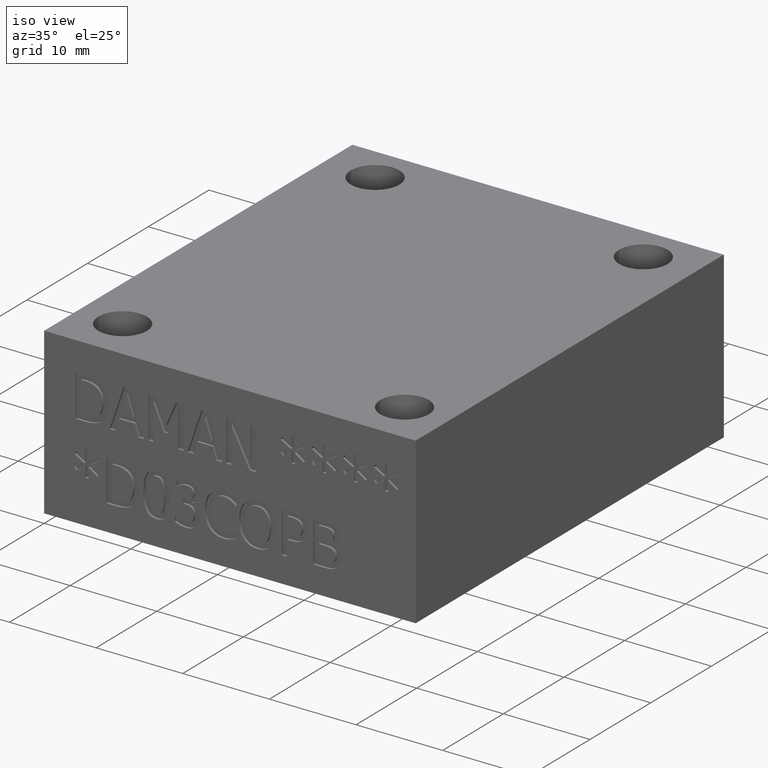
[diagram: clean part render]
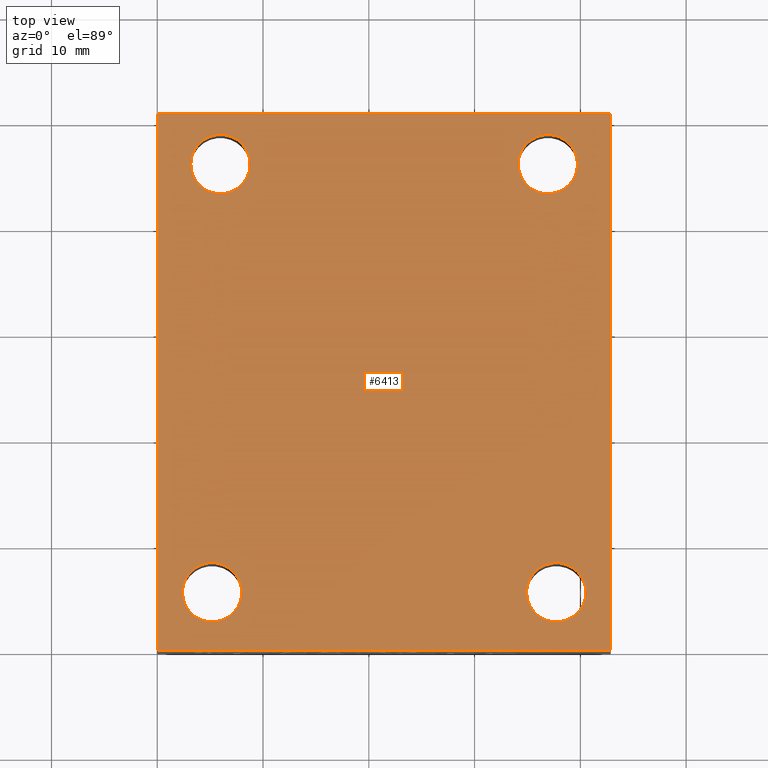
[diagram: tour spotlight — one face highlighted and labeled with its STEP entity id]
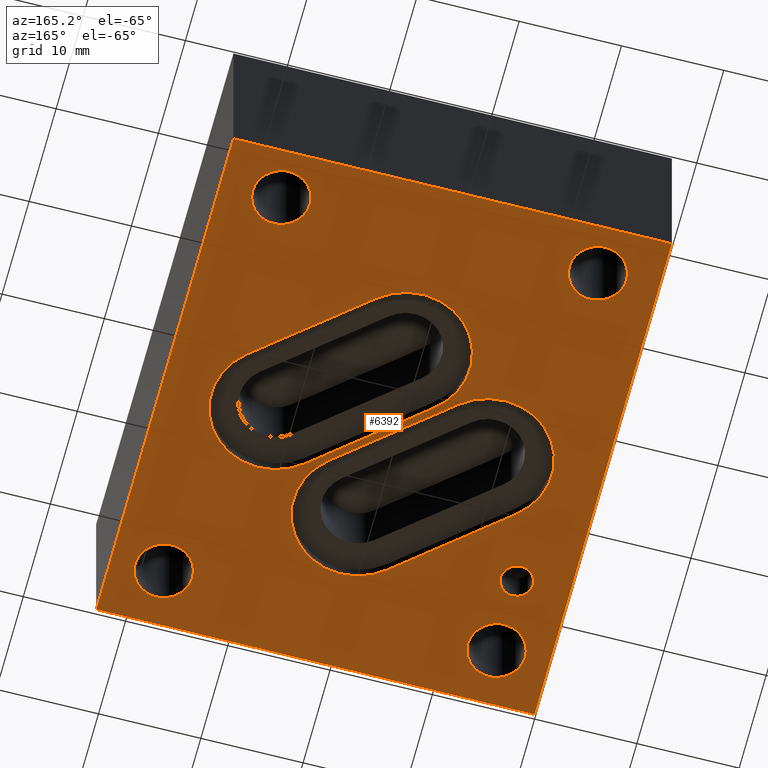
[diagram: tour spotlight — one face highlighted and labeled with its STEP entity id]
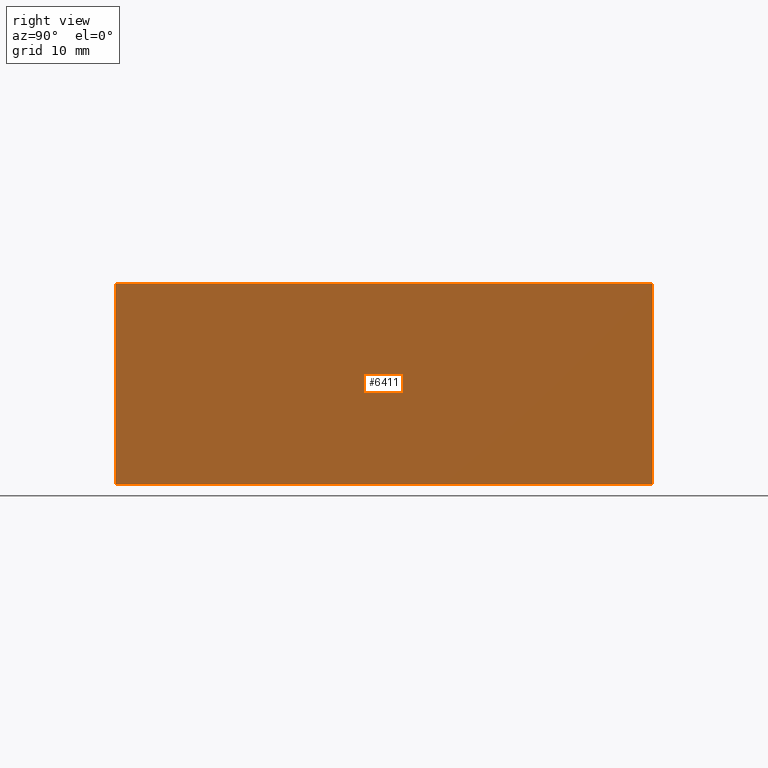
[diagram: tour spotlight — one face highlighted and labeled with its STEP entity id]
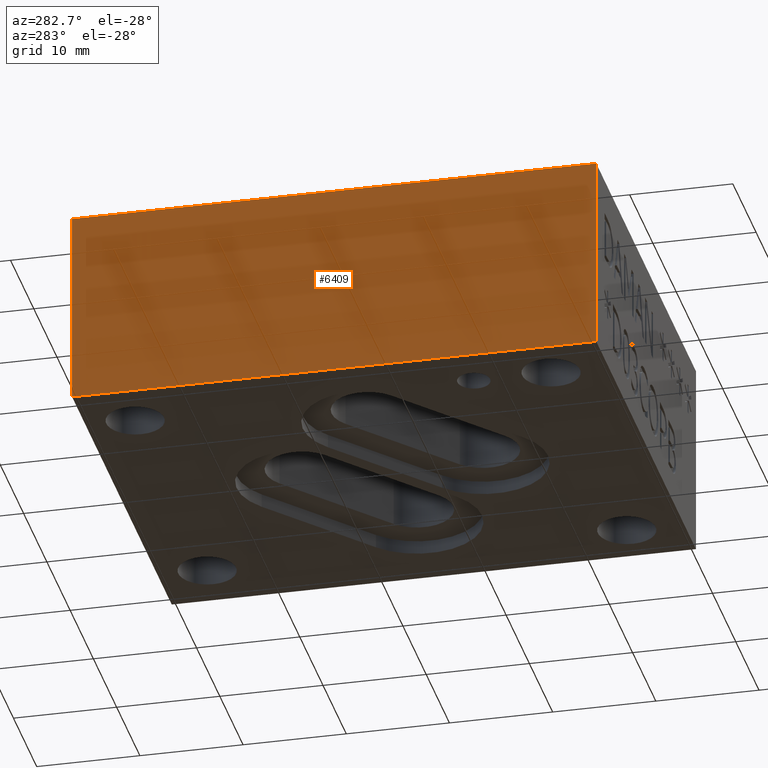
[diagram: tour spotlight — one face highlighted and labeled with its STEP entity id]
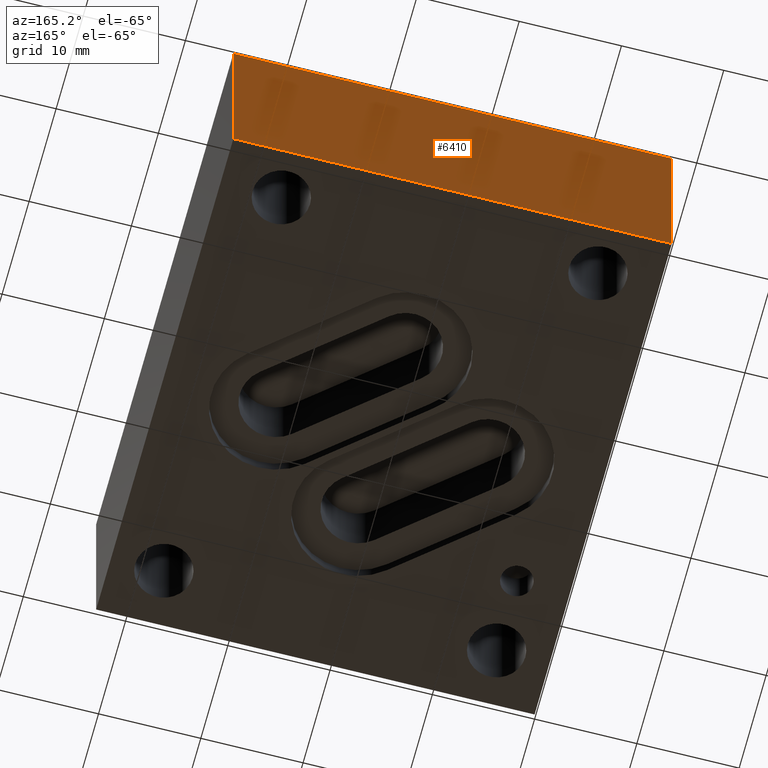
[diagram: tour spotlight — one face highlighted and labeled with its STEP entity id]
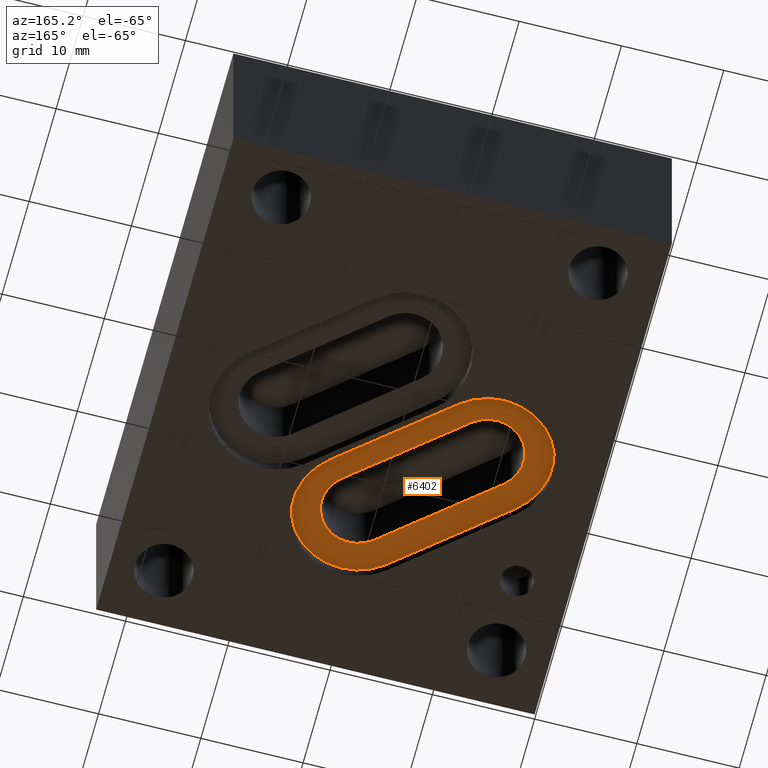
[diagram: tour spotlight — one face highlighted and labeled with its STEP entity id]
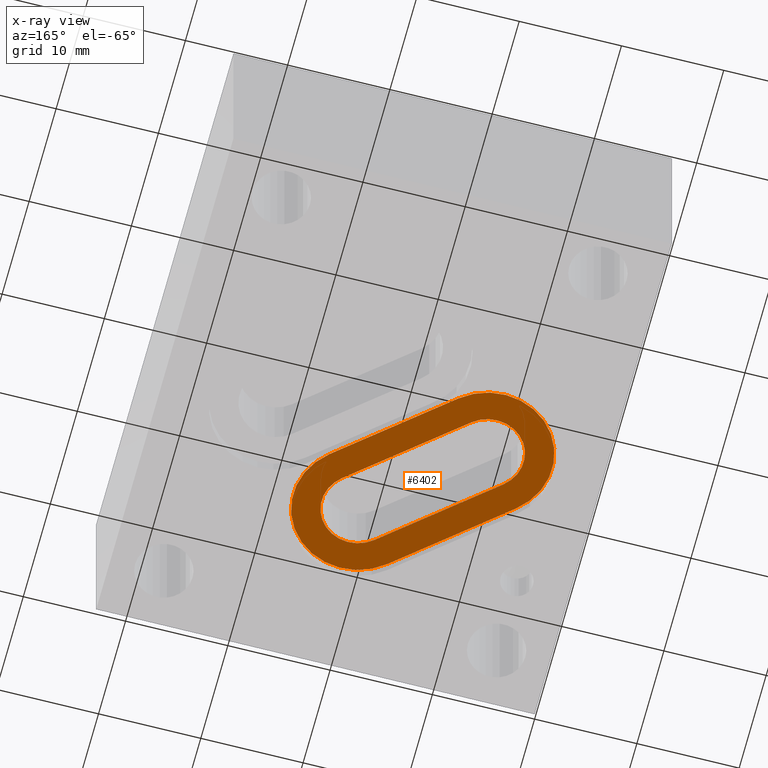
[diagram: x-ray of the same camera — body ghosted, this tour face saturated]
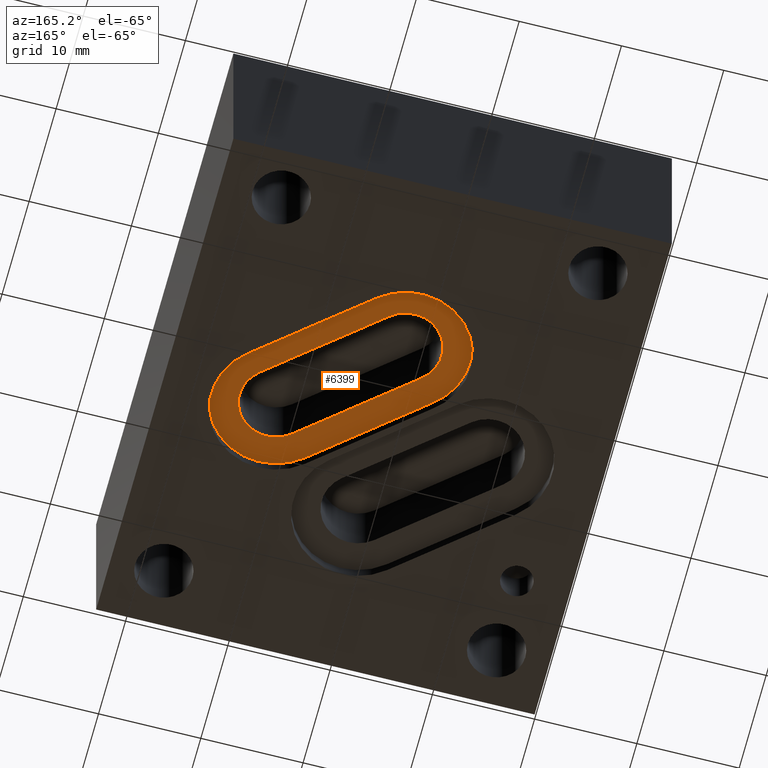
[diagram: tour spotlight — one face highlighted and labeled with its STEP entity id]
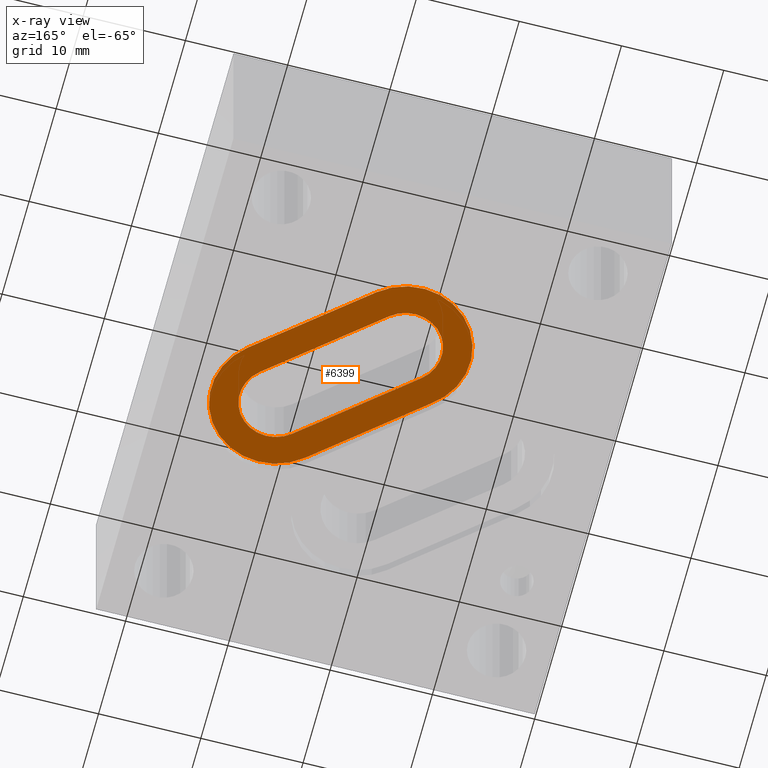
[diagram: x-ray of the same camera — body ghosted, this tour face saturated]
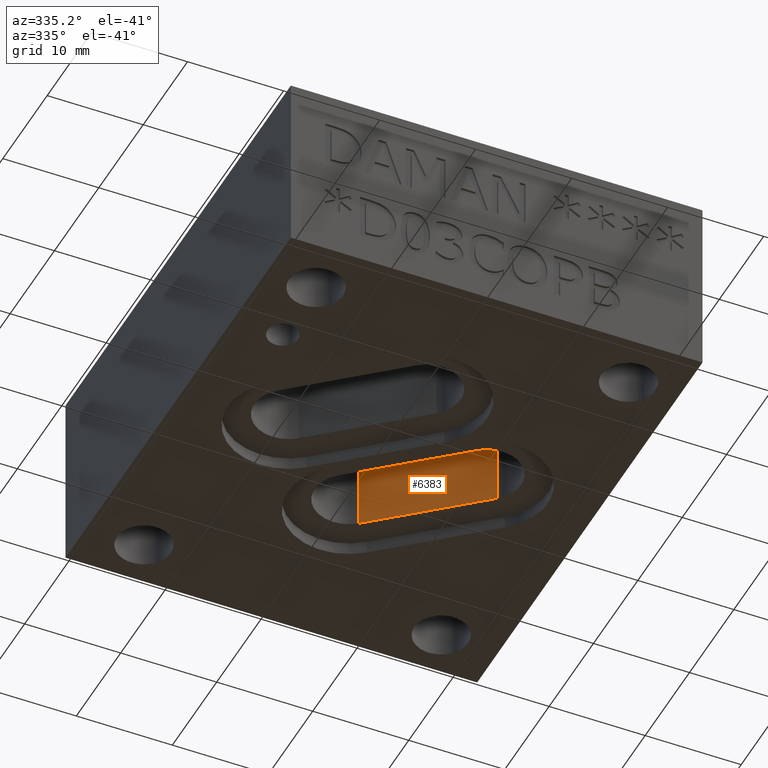
[diagram: tour spotlight — one face highlighted and labeled with its STEP entity id]
A machine part: a face-by-face anatomy tour. The part has 338 B-rep faces; the first image is the clean iso view, then the 8 largest visible faces are spotlighted one at a time (largest first), each with its STEP entity span.

Face 1 — top view, entity #6413. In plain terms, the highlighted planar face has unit normal (0, 0, 1).
Definition (entity closure, byte-faithful):
#48=CIRCLE('',#6697,0.1105);
#49=CIRCLE('',#6699,0.1105);
#50=CIRCLE('',#6701,0.1105);
#51=CIRCLE('',#6703,0.1105);
#201=FACE_BOUND('',#916,.T.);
#202=FACE_BOUND('',#917,.T.);
#203=FACE_BOUND('',#918,.T.);
#204=FACE_BOUND('',#919,.T.);
#542=FACE_OUTER_BOUND('',#915,.T.);
#915=EDGE_LOOP('',(#5845,#5846,#5847,#5848));
#916=EDGE_LOOP('',(#5849));
#917=EDGE_LOOP('',(#5850));
#918=EDGE_LOOP('',(#5851));
#919=EDGE_LOOP('',(#5852));
#1550=LINE('',#11216,#2234);
#1599=LINE('',#11399,#2283);
#1601=LINE('',#11403,#2285);
#1603=LINE('',#11406,#2287);
#2234=VECTOR('',#7731,1.688);
#2283=VECTOR('',#7932,2.);
#2285=VECTOR('',#7936,1.688);
#2287=VECTOR('',#7940,2.);
#3038=VERTEX_POINT('',#11214);
#3039=VERTEX_POINT('',#11215);
#3093=VERTEX_POINT('',#11382);
#3094=VERTEX_POINT('',#11386);
#3095=VERTEX_POINT('',#11390);
#3096=VERTEX_POINT('',#11394);
#3097=VERTEX_POINT('',#11398);
#3098=VERTEX_POINT('',#11402);
#3927=EDGE_CURVE('',#3038,#3039,#1550,.T.);
#4004=EDGE_CURVE('',#3093,#3093,#48,.T.);
#4006=EDGE_CURVE('',#3094,#3094,#49,.T.);
#4008=EDGE_CURVE('',#3095,#3095,#50,.T.);
#4010=EDGE_CURVE('',#3096,#3096,#51,.T.);
#4012=EDGE_CURVE('',#3039,#3097,#1599,.T.);
#4014=EDGE_CURVE('',#3097,#3098,#1601,.T.);
#4016=EDGE_CURVE('',#3098,#3038,#1603,.T.);
#5845=ORIENTED_EDGE('',*,*,#4012,.F.);
#5846=ORIENTED_EDGE('',*,*,#3927,.F.);
#5847=ORIENTED_EDGE('',*,*,#4016,.F.);
#5848=ORIENTED_EDGE('',*,*,#4014,.F.);
#5849=ORIENTED_EDGE('',*,*,#4004,.T.);
#5850=ORIENTED_EDGE('',*,*,#4006,.T.);
#5851=ORIENTED_EDGE('',*,*,#4008,.T.);
#5852=ORIENTED_EDGE('',*,*,#4010,.T.);
#6075=PLANE('',#6708);
#6413=ADVANCED_FACE('',(#542,#201,#202,#203,#204),#6075,.T.);
#6697=AXIS2_PLACEMENT_3D('',#11383,#7912,#7913);
#6699=AXIS2_PLACEMENT_3D('',#11387,#7917,#7918);
#6701=AXIS2_PLACEMENT_3D('',#11391,#7922,#7923);
#6703=AXIS2_PLACEMENT_3D('',#11395,#7927,#7928);
#6708=AXIS2_PLACEMENT_3D('',#11408,#7943,#7944);
#7731=DIRECTION('',(-1.,0.,0.));
#7912=DIRECTION('center_axis',(0.,0.,-1.));
#7913=DIRECTION('ref_axis',(1.,0.,0.));
#7917=DIRECTION('center_axis',(0.,0.,-1.));
#7918=DIRECTION('ref_axis',(1.,0.,0.));
#7922=DIRECTION('center_axis',(0.,0.,-1.));
#7923=DIRECTION('ref_axis',(1.,0.,0.));
#7927=DIRECTION('center_axis',(0.,0.,-1.));
#7928=DIRECTION('ref_axis',(1.,0.,0.));
#7932=DIRECTION('',(0.,1.,0.));
#7936=DIRECTION('',(1.,0.,0.));
#7940=DIRECTION('',(0.,-1.,0.));
#7943=DIRECTION('center_axis',(0.,0.,1.));
#7944=DIRECTION('ref_axis',(1.,0.,0.));
#11214=CARTESIAN_POINT('',(1.688,0.,0.75));
#11215=CARTESIAN_POINT('',(0.,0.,0.75));
#11216=CARTESIAN_POINT('',(1.688,0.,0.75));
#11382=CARTESIAN_POINT('',(0.0935,0.218,0.75));
#11383=CARTESIAN_POINT('Origin',(0.204,0.218,0.75));
#11386=CARTESIAN_POINT('',(1.3745,0.218,0.75));
#11387=CARTESIAN_POINT('Origin',(1.485,0.218,0.75));
#11390=CARTESIAN_POINT('',(1.3435,1.812,0.75));
#11391=CARTESIAN_POINT('Origin',(1.454,1.812,0.75));
#11394=CARTESIAN_POINT('',(0.1245,1.812,0.75));
#11395=CARTESIAN_POINT('Origin',(0.235,1.812,0.75));
#11398=CARTESIAN_POINT('',(0.,2.,0.75));
#11399=CARTESIAN_POINT('',(0.,0.,0.75));
#11402=CARTESIAN_POINT('',(1.688,2.,0.75));
#11403=CARTESIAN_POINT('',(0.,2.,0.75));
#11406=CARTESIAN_POINT('',(1.688,2.,0.75));
#11408=CARTESIAN_POINT('Origin',(0.844,1.,0.75));

Face 2 — auxiliary view, entity #6392. In plain terms, the highlighted planar face has unit normal (0, 0, 1).
Definition (entity closure, byte-faithful):
#24=CIRCLE('',#6658,0.25);
#27=CIRCLE('',#6662,0.25);
#28=CIRCLE('',#6664,0.25);
#29=CIRCLE('',#6665,0.25);
#30=CIRCLE('',#6666,0.0625);
#31=CIRCLE('',#6667,0.0625);
#32=CIRCLE('',#6668,0.1105);
#33=CIRCLE('',#6669,0.1105);
#34=CIRCLE('',#6670,0.1105);
#35=CIRCLE('',#6671,0.1105);
#36=CIRCLE('',#6672,0.1105);
#37=CIRCLE('',#6673,0.1105);
#38=CIRCLE('',#6674,0.1105);
#39=CIRCLE('',#6675,0.1105);
#192=FACE_BOUND('',#886,.T.);
#193=FACE_BOUND('',#887,.T.);
#194=FACE_BOUND('',#888,.T.);
#195=FACE_BOUND('',#889,.T.);
#196=FACE_BOUND('',#890,.T.);
#197=FACE_BOUND('',#891,.T.);
#198=FACE_BOUND('',#892,.T.);
#521=FACE_OUTER_BOUND('',#885,.T.);
#885=EDGE_LOOP('',(#5730,#5731,#5732,#5733));
#886=EDGE_LOOP('',(#5734,#5735,#5736,#5737));
#887=EDGE_LOOP('',(#5738,#5739,#5740,#5741));
#888=EDGE_LOOP('',(#5742,#5743));
#889=EDGE_LOOP('',(#5744,#5745));
#890=EDGE_LOOP('',(#5746,#5747));
#891=EDGE_LOOP('',(#5748,#5749));
#892=EDGE_LOOP('',(#5750,#5751));
#1552=LINE('',#11220,#2236);
#1576=LINE('',#11293,#2260);
#1580=LINE('',#11302,#2264);
#1585=LINE('',#11312,#2269);
#1588=LINE('',#11320,#2272);
#1590=LINE('',#11330,#2274);
#1591=LINE('',#11332,#2275);
#1592=LINE('',#11333,#2276);
#2236=VECTOR('',#7733,1.688);
#2260=VECTOR('',#7807,0.532139079564732);
#2264=VECTOR('',#7813,0.532139079564732);
#2269=VECTOR('',#7820,0.514935238714833);
#2272=VECTOR('',#7825,0.532902430093915);
#2274=VECTOR('',#7841,2.);
#2275=VECTOR('',#7842,1.688);
#2276=VECTOR('',#7843,2.);
#3040=VERTEX_POINT('',#11217);
#3041=VERTEX_POINT('',#11219);
#3064=VERTEX_POINT('',#11290);
#3065=VERTEX_POINT('',#11292);
#3068=VERTEX_POINT('',#11299);
#3069=VERTEX_POINT('',#11301);
#3071=VERTEX_POINT('',#11306);
#3073=VERTEX_POINT('',#11310);
#3076=VERTEX_POINT('',#11317);
#3077=VERTEX_POINT('',#11319);
#3078=VERTEX_POINT('',#11329);
#3079=VERTEX_POINT('',#11331);
#3080=VERTEX_POINT('',#11336);
#3081=VERTEX_POINT('',#11337);
#3082=VERTEX_POINT('',#11340);
#3083=VERTEX_POINT('',#11341);
#3084=VERTEX_POINT('',#11344);
#3085=VERTEX_POINT('',#11345);
#3086=VERTEX_POINT('',#11348);
#3087=VERTEX_POINT('',#11349);
#3088=VERTEX_POINT('',#11352);
#3089=VERTEX_POINT('',#11353);
#3929=EDGE_CURVE('',#3040,#3041,#1552,.T.);
#3961=EDGE_CURVE('',#3065,#3064,#1576,.T.);
#3965=EDGE_CURVE('',#3069,#3068,#1580,.T.);
#3970=EDGE_CURVE('',#3071,#3073,#1585,.T.);
#3973=EDGE_CURVE('',#3077,#3076,#1588,.T.);
#3975=EDGE_CURVE('',#3064,#3069,#24,.T.);
#3978=EDGE_CURVE('',#3068,#3065,#27,.T.);
#3979=EDGE_CURVE('',#3078,#3040,#1590,.T.);
#3980=EDGE_CURVE('',#3079,#3078,#1591,.T.);
#3981=EDGE_CURVE('',#3041,#3079,#1592,.T.);
#3982=EDGE_CURVE('',#3076,#3071,#28,.T.);
#3983=EDGE_CURVE('',#3073,#3077,#29,.T.);
#3984=EDGE_CURVE('',#3080,#3081,#30,.T.);
#3985=EDGE_CURVE('',#3081,#3080,#31,.T.);
#3986=EDGE_CURVE('',#3082,#3083,#32,.T.);
#3987=EDGE_CURVE('',#3083,#3082,#33,.T.);
#3988=EDGE_CURVE('',#3084,#3085,#34,.T.);
#3989=EDGE_CURVE('',#3085,#3084,#35,.T.);
#3990=EDGE_CURVE('',#3086,#3087,#36,.T.);
#3991=EDGE_CURVE('',#3087,#3086,#37,.T.);
#3992=EDGE_CURVE('',#3088,#3089,#38,.T.);
#3993=EDGE_CURVE('',#3089,#3088,#39,.T.);
#5730=ORIENTED_EDGE('',*,*,#3929,.F.);
#5731=ORIENTED_EDGE('',*,*,#3979,.F.);
#5732=ORIENTED_EDGE('',*,*,#3980,.F.);
#5733=ORIENTED_EDGE('',*,*,#3981,.F.);
#5734=ORIENTED_EDGE('',*,*,#3965,.T.);
#5735=ORIENTED_EDGE('',*,*,#3978,.T.);
#5736=ORIENTED_EDGE('',*,*,#3961,.T.);
#5737=ORIENTED_EDGE('',*,*,#3975,.T.);
#5738=ORIENTED_EDGE('',*,*,#3973,.T.);
#5739=ORIENTED_EDGE('',*,*,#3982,.T.);
#5740=ORIENTED_EDGE('',*,*,#3970,.T.);
#5741=ORIENTED_EDGE('',*,*,#3983,.T.);
#5742=ORIENTED_EDGE('',*,*,#3984,.T.);
#5743=ORIENTED_EDGE('',*,*,#3985,.T.);
#5744=ORIENTED_EDGE('',*,*,#3986,.T.);
#5745=ORIENTED_EDGE('',*,*,#3987,.T.);
#5746=ORIENTED_EDGE('',*,*,#3988,.T.);
#5747=ORIENTED_EDGE('',*,*,#3989,.T.);
#5748=ORIENTED_EDGE('',*,*,#3990,.T.);
#5749=ORIENTED_EDGE('',*,*,#3991,.T.);
#5750=ORIENTED_EDGE('',*,*,#3992,.T.);
#5751=ORIENTED_EDGE('',*,*,#3993,.T.);
#6064=PLANE('',#6663);
#6392=ADVANCED_FACE('',(#521,#192,#193,#194,#195,#196,#197,#198),#6064,
 .F.);
#6658=AXIS2_PLACEMENT_3D('',#11323,#7829,#7830);
#6662=AXIS2_PLACEMENT_3D('',#11327,#7837,#7838);
#6663=AXIS2_PLACEMENT_3D('',#11328,#7839,#7840);
#6664=AXIS2_PLACEMENT_3D('',#11334,#7844,#7845);
#6665=AXIS2_PLACEMENT_3D('',#11335,#7846,#7847);
#6666=AXIS2_PLACEMENT_3D('',#11338,#7848,#7849);
#6667=AXIS2_PLACEMENT_3D('',#11339,#7850,#7851);
#6668=AXIS2_PLACEMENT_3D('',#11342,#7852,#7853);
#6669=AXIS2_PLACEMENT_3D('',#11343,#7854,#7855);
#6670=AXIS2_PLACEMENT_3D('',#11346,#7856,#7857);
#6671=AXIS2_PLACEMENT_3D('',#11347,#7858,#7859);
#6672=AXIS2_PLACEMENT_3D('',#11350,#7860,#7861);
#6673=AXIS2_PLACEMENT_3D('',#11351,#7862,#7863);
#6674=AXIS2_PLACEMENT_3D('',#11354,#7864,#7865);
#6675=AXIS2_PLACEMENT_3D('',#11355,#7866,#7867);
#7733=DIRECTION('',(1.,0.,0.));
#7807=DIRECTION('',(-0.762958436227032,0.646447542024874,0.));
#7813=DIRECTION('',(0.762958436227032,-0.646447542024875,0.));
#7820=DIRECTION('',(0.762958436227032,-0.646447542024875,0.));
#7825=DIRECTION('',(-0.763742060489897,0.64552154498409,0.));
#7829=DIRECTION('center_axis',(0.,0.,1.));
#7830=DIRECTION('ref_axis',(1.,0.,0.));
#7837=DIRECTION('center_axis',(0.,0.,1.));
#7838=DIRECTION('ref_axis',(1.,0.,0.));
#7839=DIRECTION('center_axis',(0.,0.,1.));
#7840=DIRECTION('ref_axis',(1.,0.,0.));
#7841=DIRECTION('',(0.,-1.,0.));
#7842=DIRECTION('',(-1.,0.,0.));
#7843=DIRECTION('',(0.,1.,0.));
#7844=DIRECTION('center_axis',(0.,0.,1.));
#7845=DIRECTION('ref_axis',(1.,0.,0.));
#7846=DIRECTION('center_axis',(0.,0.,1.));
#7847=DIRECTION('ref_axis',(1.,0.,0.));
#7848=DIRECTION('center_axis',(0.,0.,1.));
#7849=DIRECTION('ref_axis',(1.,0.,0.));
#7850=DIRECTION('center_axis',(0.,0.,1.));
#7851=DIRECTION('ref_axis',(1.,0.,0.));
#7852=DIRECTION('center_axis',(0.,0.,1.));
#7853=DIRECTION('ref_axis',(1.,0.,0.));
#7854=DIRECTION('center_axis',(0.,0.,1.));
#7855=DIRECTION('ref_axis',(1.,0.,0.));
#7856=DIRECTION('center_axis',(0.,0.,1.));
#7857=DIRECTION('ref_axis',(1.,0.,0.));
#7858=DIRECTION('center_axis',(0.,0.,1.));
#7859=DIRECTION('ref_axis',(1.,0.,0.));
#7860=DIRECTION('center_axis',(0.,0.,1.));
#7861=DIRECTION('ref_axis',(1.,0.,0.));
#7862=DIRECTION('center_axis',(0.,0.,1.));
#7863=DIRECTION('ref_axis',(1.,0.,0.));
#7864=DIRECTION('center_axis',(0.,0.,1.));
#7865=DIRECTION('ref_axis',(1.,0.,0.));
#7866=DIRECTION('center_axis',(0.,0.,1.));
#7867=DIRECTION('ref_axis',(1.,0.,0.));
#11217=CARTESIAN_POINT('',(0.,0.,0.));
#11219=CARTESIAN_POINT('',(1.688,0.,0.));
#11220=CARTESIAN_POINT('',(0.,0.,0.));
#11290=CARTESIAN_POINT('',(0.599611885506218,1.15873960905676,0.));
#11292=CARTESIAN_POINT('',(1.00561188550622,0.814739609056758,0.));
#11293=CARTESIAN_POINT('',(1.00561188550622,0.814739609056758,0.));
#11299=CARTESIAN_POINT('',(0.682388114493781,0.433260390943242,0.));
#11301=CARTESIAN_POINT('',(0.276388114493781,0.777260390943242,0.));
#11302=CARTESIAN_POINT('',(0.276388114493781,0.777260390943242,0.));
#11306=CARTESIAN_POINT('',(0.696513930005719,1.11013901031244,0.));
#11310=CARTESIAN_POINT('',(1.08938811449378,0.777260390943242,0.));
#11312=CARTESIAN_POINT('',(0.696513930005719,1.11013901031244,0.));
#11317=CARTESIAN_POINT('',(1.00538038624602,1.50293551512247,0.));
#11319=CARTESIAN_POINT('',(1.41238038624602,1.15893551512247,0.));
#11320=CARTESIAN_POINT('',(1.41238038624602,1.15893551512247,0.));
#11323=CARTESIAN_POINT('Origin',(0.438,0.968,0.));
#11327=CARTESIAN_POINT('Origin',(0.844,0.624,0.));
#11328=CARTESIAN_POINT('Origin',(0.844,1.,0.));
#11329=CARTESIAN_POINT('',(0.,2.,0.));
#11330=CARTESIAN_POINT('',(0.,2.,0.));
#11331=CARTESIAN_POINT('',(1.688,2.,0.));
#11332=CARTESIAN_POINT('',(1.688,2.,0.));
#11333=CARTESIAN_POINT('',(1.688,0.,0.));
#11334=CARTESIAN_POINT('Origin',(0.844,1.312,0.));
#11335=CARTESIAN_POINT('Origin',(1.251,0.968,0.));
#11336=CARTESIAN_POINT('',(0.2665,0.513,0.));
#11337=CARTESIAN_POINT('',(0.1415,0.513,0.));
#11338=CARTESIAN_POINT('Origin',(0.204,0.513,0.));
#11339=CARTESIAN_POINT('Origin',(0.204,0.513,0.));
#11340=CARTESIAN_POINT('',(0.3145,0.218,0.));
#11341=CARTESIAN_POINT('',(0.0935,0.218,0.));
#11342=CARTESIAN_POINT('Origin',(0.204,0.218,0.));
#11343=CARTESIAN_POINT('Origin',(0.204,0.218,0.));
#11344=CARTESIAN_POINT('',(1.5955,0.218,0.));
#11345=CARTESIAN_POINT('',(1.3745,0.218,0.));
#11346=CARTESIAN_POINT('Origin',(1.485,0.218,0.));
#11347=CARTESIAN_POINT('Origin',(1.485,0.218,0.));
#11348=CARTESIAN_POINT('',(1.5645,1.812,0.));
#11349=CARTESIAN_POINT('',(1.3435,1.812,0.));
#11350=CARTESIAN_POINT('Origin',(1.454,1.812,0.));
#11351=CARTESIAN_POINT('Origin',(1.454,1.812,0.));
#11352=CARTESIAN_POINT('',(0.3455,1.812,0.));
#11353=CARTESIAN_POINT('',(0.1245,1.812,0.));
#11354=CARTESIAN_POINT('Origin',(0.235,1.812,0.));
#11355=CARTESIAN_POINT('Origin',(0.235,1.812,0.));

Face 3 — right view, entity #6411. In plain terms, the highlighted planar face has unit normal (1, 0, 0).
Definition (entity closure, byte-faithful):
#540=FACE_OUTER_BOUND('',#913,.T.);
#913=EDGE_LOOP('',(#5834,#5835,#5836,#5837));
#1553=LINE('',#11221,#2237);
#1592=LINE('',#11333,#2276);
#1602=LINE('',#11404,#2286);
#1603=LINE('',#11406,#2287);
#2237=VECTOR('',#7734,0.75);
#2276=VECTOR('',#7843,2.);
#2286=VECTOR('',#7937,0.75);
#2287=VECTOR('',#7940,2.);
#3038=VERTEX_POINT('',#11214);
#3041=VERTEX_POINT('',#11219);
#3079=VERTEX_POINT('',#11331);
#3098=VERTEX_POINT('',#11402);
#3930=EDGE_CURVE('',#3041,#3038,#1553,.T.);
#3981=EDGE_CURVE('',#3041,#3079,#1592,.T.);
#4015=EDGE_CURVE('',#3079,#3098,#1602,.T.);
#4016=EDGE_CURVE('',#3098,#3038,#1603,.T.);
#5834=ORIENTED_EDGE('',*,*,#4016,.T.);
#5835=ORIENTED_EDGE('',*,*,#3930,.F.);
#5836=ORIENTED_EDGE('',*,*,#3981,.T.);
#5837=ORIENTED_EDGE('',*,*,#4015,.T.);
#6073=PLANE('',#6706);
#6411=ADVANCED_FACE('',(#540),#6073,.T.);
#6706=AXIS2_PLACEMENT_3D('',#11405,#7938,#7939);
#7734=DIRECTION('',(0.,0.,1.));
#7843=DIRECTION('',(0.,1.,0.));
#7937=DIRECTION('',(0.,0.,1.));
#7938=DIRECTION('center_axis',(1.,0.,0.));
#7939=DIRECTION('ref_axis',(0.,0.,-1.));
#7940=DIRECTION('',(0.,-1.,0.));
#11214=CARTESIAN_POINT('',(1.688,0.,0.75));
#11219=CARTESIAN_POINT('',(1.688,0.,0.));
#11221=CARTESIAN_POINT('',(1.688,0.,0.));
#11331=CARTESIAN_POINT('',(1.688,2.,0.));
#11333=CARTESIAN_POINT('',(1.688,0.,0.));
#11402=CARTESIAN_POINT('',(1.688,2.,0.75));
#11404=CARTESIAN_POINT('',(1.688,2.,0.));
#11405=CARTESIAN_POINT('Origin',(1.688,2.,0.));
#11406=CARTESIAN_POINT('',(1.688,2.,0.75));

Face 4 — auxiliary view, entity #6409. In plain terms, the highlighted planar face has unit normal (-1, 0, 0).
Definition (entity closure, byte-faithful):
#538=FACE_OUTER_BOUND('',#911,.T.);
#911=EDGE_LOOP('',(#5826,#5827,#5828,#5829));
#1551=LINE('',#11218,#2235);
#1590=LINE('',#11330,#2274);
#1599=LINE('',#11399,#2283);
#1600=LINE('',#11400,#2284);
#2235=VECTOR('',#7732,0.75);
#2274=VECTOR('',#7841,2.);
#2283=VECTOR('',#7932,2.);
#2284=VECTOR('',#7933,0.75);
#3039=VERTEX_POINT('',#11215);
#3040=VERTEX_POINT('',#11217);
#3078=VERTEX_POINT('',#11329);
#3097=VERTEX_POINT('',#11398);
#3928=EDGE_CURVE('',#3040,#3039,#1551,.T.);
#3979=EDGE_CURVE('',#3078,#3040,#1590,.T.);
#4012=EDGE_CURVE('',#3039,#3097,#1599,.T.);
#4013=EDGE_CURVE('',#3078,#3097,#1600,.T.);
#5826=ORIENTED_EDGE('',*,*,#4012,.T.);
#5827=ORIENTED_EDGE('',*,*,#4013,.F.);
#5828=ORIENTED_EDGE('',*,*,#3979,.T.);
#5829=ORIENTED_EDGE('',*,*,#3928,.T.);
#6071=PLANE('',#6704);
#6409=ADVANCED_FACE('',(#538),#6071,.T.);
#6704=AXIS2_PLACEMENT_3D('',#11397,#7930,#7931);
#7732=DIRECTION('',(0.,0.,1.));
#7841=DIRECTION('',(0.,-1.,0.));
#7930=DIRECTION('center_axis',(-1.,0.,0.));
#7931=DIRECTION('ref_axis',(0.,0.,1.));
#7932=DIRECTION('',(0.,1.,0.));
#7933=DIRECTION('',(0.,0.,1.));
#11215=CARTESIAN_POINT('',(0.,0.,0.75));
#11217=CARTESIAN_POINT('',(0.,0.,0.));
#11218=CARTESIAN_POINT('',(0.,0.,0.));
#11329=CARTESIAN_POINT('',(0.,2.,0.));
#11330=CARTESIAN_POINT('',(0.,2.,0.));
#11397=CARTESIAN_POINT('Origin',(0.,0.,0.));
#11398=CARTESIAN_POINT('',(0.,2.,0.75));
#11399=CARTESIAN_POINT('',(0.,0.,0.75));
#11400=CARTESIAN_POINT('',(0.,2.,0.));

Face 5 — auxiliary view, entity #6410. In plain terms, the highlighted planar face has unit normal (0, 1, 0).
Definition (entity closure, byte-faithful):
#539=FACE_OUTER_BOUND('',#912,.T.);
#912=EDGE_LOOP('',(#5830,#5831,#5832,#5833));
#1591=LINE('',#11332,#2275);
#1600=LINE('',#11400,#2284);
#1601=LINE('',#11403,#2285);
#1602=LINE('',#11404,#2286);
#2275=VECTOR('',#7842,1.688);
#2284=VECTOR('',#7933,0.75);
#2285=VECTOR('',#7936,1.688);
#2286=VECTOR('',#7937,0.75);
#3078=VERTEX_POINT('',#11329);
#3079=VERTEX_POINT('',#11331);
#3097=VERTEX_POINT('',#11398);
#3098=VERTEX_POINT('',#11402);
#3980=EDGE_CURVE('',#3079,#3078,#1591,.T.);
#4013=EDGE_CURVE('',#3078,#3097,#1600,.T.);
#4014=EDGE_CURVE('',#3097,#3098,#1601,.T.);
#4015=EDGE_CURVE('',#3079,#3098,#1602,.T.);
#5830=ORIENTED_EDGE('',*,*,#4014,.T.);
#5831=ORIENTED_EDGE('',*,*,#4015,.F.);
#5832=ORIENTED_EDGE('',*,*,#3980,.T.);
#5833=ORIENTED_EDGE('',*,*,#4013,.T.);
#6072=PLANE('',#6705);
#6410=ADVANCED_FACE('',(#539),#6072,.T.);
#6705=AXIS2_PLACEMENT_3D('',#11401,#7934,#7935);
#7842=DIRECTION('',(-1.,0.,0.));
#7933=DIRECTION('',(0.,0.,1.));
#7934=DIRECTION('center_axis',(0.,1.,0.));
#7935=DIRECTION('ref_axis',(0.,0.,1.));
#7936=DIRECTION('',(1.,0.,0.));
#7937=DIRECTION('',(0.,0.,1.));
#11329=CARTESIAN_POINT('',(0.,2.,0.));
#11331=CARTESIAN_POINT('',(1.688,2.,0.));
#11332=CARTESIAN_POINT('',(1.688,2.,0.));
#11398=CARTESIAN_POINT('',(0.,2.,0.75));
#11400=CARTESIAN_POINT('',(0.,2.,0.));
#11401=CARTESIAN_POINT('Origin',(0.,2.,0.));
#11402=CARTESIAN_POINT('',(1.688,2.,0.75));
#11403=CARTESIAN_POINT('',(0.,2.,0.75));
#11404=CARTESIAN_POINT('',(1.688,2.,0.));

Face 6 — auxiliary view, entity #6402. An x-ray twin of the same camera follows (body ghosted, this face saturated) — the face is partly hidden behind the body. In plain terms, the highlighted planar face has unit normal (0, 0, 1).
Definition (entity closure, byte-faithful):
#25=CIRCLE('',#6659,0.25);
#26=CIRCLE('',#6661,0.25);
#43=CIRCLE('',#6683,0.1405);
#45=CIRCLE('',#6690,0.1405);
#200=FACE_BOUND('',#904,.T.);
#531=FACE_OUTER_BOUND('',#903,.T.);
#903=EDGE_LOOP('',(#5788,#5789,#5790,#5791));
#904=EDGE_LOOP('',(#5792,#5793,#5794,#5795));
#1558=LINE('',#11245,#2242);
#1562=LINE('',#11253,#2246);
#1574=LINE('',#11289,#2258);
#1578=LINE('',#11298,#2262);
#2242=VECTOR('',#7763,0.5321683239352);
#2246=VECTOR('',#7769,0.5321683239352);
#2258=VECTOR('',#7805,0.532139079564732);
#2262=VECTOR('',#7811,0.532139079564732);
#3047=VERTEX_POINT('',#11242);
#3048=VERTEX_POINT('',#11244);
#3050=VERTEX_POINT('',#11250);
#3051=VERTEX_POINT('',#11252);
#3062=VERTEX_POINT('',#11287);
#3063=VERTEX_POINT('',#11288);
#3066=VERTEX_POINT('',#11296);
#3067=VERTEX_POINT('',#11297);
#3937=EDGE_CURVE('',#3048,#3047,#1558,.T.);
#3941=EDGE_CURVE('',#3051,#3050,#1562,.T.);
#3959=EDGE_CURVE('',#3062,#3063,#1574,.T.);
#3963=EDGE_CURVE('',#3066,#3067,#1578,.T.);
#3976=EDGE_CURVE('',#3067,#3062,#25,.T.);
#3977=EDGE_CURVE('',#3063,#3066,#26,.T.);
#3997=EDGE_CURVE('',#3047,#3051,#43,.T.);
#3999=EDGE_CURVE('',#3050,#3048,#45,.T.);
#5788=ORIENTED_EDGE('',*,*,#3976,.T.);
#5789=ORIENTED_EDGE('',*,*,#3959,.T.);
#5790=ORIENTED_EDGE('',*,*,#3977,.T.);
#5791=ORIENTED_EDGE('',*,*,#3963,.T.);
#5792=ORIENTED_EDGE('',*,*,#3937,.T.);
#5793=ORIENTED_EDGE('',*,*,#3997,.T.);
#5794=ORIENTED_EDGE('',*,*,#3941,.T.);
#5795=ORIENTED_EDGE('',*,*,#3999,.T.);
#6070=PLANE('',#6691);
#6402=ADVANCED_FACE('',(#531,#200),#6070,.F.);
#6659=AXIS2_PLACEMENT_3D('',#11324,#7831,#7832);
#6661=AXIS2_PLACEMENT_3D('',#11326,#7835,#7836);
#6683=AXIS2_PLACEMENT_3D('',#11363,#7882,#7883);
#6690=AXIS2_PLACEMENT_3D('',#11370,#7896,#7897);
#6691=AXIS2_PLACEMENT_3D('',#11371,#7898,#7899);
#7763=DIRECTION('',(0.763386285369115,-0.645942241466174,0.));
#7769=DIRECTION('',(-0.763386285369115,0.645942241466174,0.));
#7805=DIRECTION('',(0.762958436227032,-0.646447542024874,0.));
#7811=DIRECTION('',(-0.762958436227032,0.646447542024875,0.));
#7831=DIRECTION('center_axis',(0.,0.,-1.));
#7832=DIRECTION('ref_axis',(1.,0.,0.));
#7835=DIRECTION('center_axis',(0.,0.,-1.));
#7836=DIRECTION('ref_axis',(1.,0.,0.));
#7882=DIRECTION('center_axis',(0.,0.,1.));
#7883=DIRECTION('ref_axis',(1.,0.,0.));
#7896=DIRECTION('center_axis',(0.,0.,1.));
#7897=DIRECTION('ref_axis',(1.,0.,0.));
#7898=DIRECTION('center_axis',(0.,0.,1.));
#7899=DIRECTION('ref_axis',(1.,0.,0.));
#11242=CARTESIAN_POINT('',(0.753495115074003,0.516994226905639,0.052));
#11244=CARTESIAN_POINT('',(0.347245115074002,0.860744226905639,0.052));
#11245=CARTESIAN_POINT('',(0.347245115074003,0.860744226905639,0.052));
#11250=CARTESIAN_POINT('',(0.528754884925997,1.07525577309436,0.052));
#11252=CARTESIAN_POINT('',(0.935004884925997,0.731505773094361,0.052));
#11253=CARTESIAN_POINT('',(0.935004884925997,0.731505773094361,0.052));
#11287=CARTESIAN_POINT('',(0.599611885506218,1.15873960905676,0.052));
#11288=CARTESIAN_POINT('',(1.00561188550622,0.814739609056758,0.052));
#11289=CARTESIAN_POINT('',(0.599611885506218,1.15873960905676,0.052));
#11296=CARTESIAN_POINT('',(0.682388114493781,0.433260390943242,0.052));
#11297=CARTESIAN_POINT('',(0.276388114493781,0.777260390943242,0.052));
#11298=CARTESIAN_POINT('',(0.682388114493781,0.433260390943242,0.052));
#11324=CARTESIAN_POINT('Origin',(0.438,0.968,0.052));
#11326=CARTESIAN_POINT('Origin',(0.844,0.624,0.052));
#11363=CARTESIAN_POINT('Origin',(0.84425,0.62425,0.052));
#11370=CARTESIAN_POINT('Origin',(0.438,0.968,0.052));
#11371=CARTESIAN_POINT('Origin',(0.563,0.968,0.052));

Face 7 — auxiliary view, entity #6399. An x-ray twin of the same camera follows (body ghosted, this face saturated) — the face is partly hidden behind the body. In plain terms, the highlighted planar face has unit normal (0, 0, 1).
Definition (entity closure, byte-faithful):
#20=CIRCLE('',#6648,0.1405);
#23=CIRCLE('',#6652,0.1405);
#40=CIRCLE('',#6677,0.25);
#41=CIRCLE('',#6679,0.25);
#199=FACE_BOUND('',#900,.T.);
#528=FACE_OUTER_BOUND('',#899,.T.);
#899=EDGE_LOOP('',(#5772,#5773,#5774,#5775));
#900=EDGE_LOOP('',(#5776,#5777,#5778,#5779));
#1566=LINE('',#11262,#2250);
#1572=LINE('',#11278,#2256);
#1583=LINE('',#11309,#2267);
#1586=LINE('',#11316,#2270);
#2250=VECTOR('',#7775,0.532550115012663);
#2256=VECTOR('',#7789,0.532550115012663);
#2267=VECTOR('',#7818,0.514935238714833);
#2270=VECTOR('',#7823,0.532902430093915);
#3054=VERTEX_POINT('',#11259);
#3055=VERTEX_POINT('',#11261);
#3060=VERTEX_POINT('',#11275);
#3061=VERTEX_POINT('',#11277);
#3070=VERTEX_POINT('',#11305);
#3072=VERTEX_POINT('',#11308);
#3074=VERTEX_POINT('',#11314);
#3075=VERTEX_POINT('',#11315);
#3945=EDGE_CURVE('',#3055,#3054,#1566,.T.);
#3953=EDGE_CURVE('',#3061,#3060,#1572,.T.);
#3955=EDGE_CURVE('',#3060,#3055,#20,.T.);
#3958=EDGE_CURVE('',#3054,#3061,#23,.T.);
#3968=EDGE_CURVE('',#3072,#3070,#1583,.T.);
#3971=EDGE_CURVE('',#3074,#3075,#1586,.T.);
#3994=EDGE_CURVE('',#3075,#3072,#40,.T.);
#3995=EDGE_CURVE('',#3070,#3074,#41,.T.);
#5772=ORIENTED_EDGE('',*,*,#3994,.T.);
#5773=ORIENTED_EDGE('',*,*,#3968,.T.);
#5774=ORIENTED_EDGE('',*,*,#3995,.T.);
#5775=ORIENTED_EDGE('',*,*,#3971,.T.);
#5776=ORIENTED_EDGE('',*,*,#3945,.T.);
#5777=ORIENTED_EDGE('',*,*,#3958,.T.);
#5778=ORIENTED_EDGE('',*,*,#3953,.T.);
#5779=ORIENTED_EDGE('',*,*,#3955,.T.);
#6068=PLANE('',#6686);
#6399=ADVANCED_FACE('',(#528,#199),#6068,.F.);
#6648=AXIS2_PLACEMENT_3D('',#11281,#7793,#7794);
#6652=AXIS2_PLACEMENT_3D('',#11285,#7801,#7802);
#6677=AXIS2_PLACEMENT_3D('',#11357,#7870,#7871);
#6679=AXIS2_PLACEMENT_3D('',#11359,#7874,#7875);
#6686=AXIS2_PLACEMENT_3D('',#11366,#7888,#7889);
#7775=DIRECTION('',(0.763777884059473,-0.645479158317009,0.));
#7789=DIRECTION('',(-0.763777884059472,0.64547915831701,0.));
#7793=DIRECTION('center_axis',(0.,0.,1.));
#7794=DIRECTION('ref_axis',(1.,0.,0.));
#7801=DIRECTION('center_axis',(0.,0.,1.));
#7802=DIRECTION('ref_axis',(1.,0.,0.));
#7818=DIRECTION('',(-0.762958436227032,0.646447542024875,0.));
#7823=DIRECTION('',(0.763742060489897,-0.64552154498409,0.));
#7870=DIRECTION('center_axis',(0.,0.,-1.));
#7871=DIRECTION('ref_axis',(1.,0.,0.));
#7874=DIRECTION('center_axis',(0.,0.,-1.));
#7875=DIRECTION('ref_axis',(1.,0.,0.));
#7888=DIRECTION('center_axis',(0.,0.,1.));
#7889=DIRECTION('ref_axis',(1.,0.,0.));
#11259=CARTESIAN_POINT('',(1.16031017825646,0.860689207289644,0.052));
#11261=CARTESIAN_POINT('',(0.75356017825646,1.20443920728964,0.052));
#11262=CARTESIAN_POINT('',(0.75356017825646,1.20443920728964,0.052));
#11275=CARTESIAN_POINT('',(0.93493982174354,1.41906079271036,0.052));
#11277=CARTESIAN_POINT('',(1.34168982174354,1.07531079271036,0.052));
#11278=CARTESIAN_POINT('',(1.34168982174354,1.07531079271036,0.052));
#11281=CARTESIAN_POINT('Origin',(0.84425,1.31175,0.052));
#11285=CARTESIAN_POINT('Origin',(1.251,0.968,0.052));
#11305=CARTESIAN_POINT('',(0.696513930005719,1.11013901031244,0.052));
#11308=CARTESIAN_POINT('',(1.08938811449378,0.777260390943242,0.052));
#11309=CARTESIAN_POINT('',(1.08938811449378,0.777260390943242,0.052));
#11314=CARTESIAN_POINT('',(1.00538038624602,1.50293551512247,0.052));
#11315=CARTESIAN_POINT('',(1.41238038624602,1.15893551512247,0.052));
#11316=CARTESIAN_POINT('',(1.00538038624602,1.50293551512247,0.052));
#11357=CARTESIAN_POINT('Origin',(1.251,0.968,0.052));
#11359=CARTESIAN_POINT('Origin',(0.844,1.312,0.052));
#11366=CARTESIAN_POINT('Origin',(1.376,0.968,0.052));

Face 8 — auxiliary view, entity #6383. In plain terms, the highlighted planar face has unit normal (0.6455, 0.7638, 0).
Definition (entity closure, byte-faithful):
#512=FACE_OUTER_BOUND('',#876,.T.);
#876=EDGE_LOOP('',(#5693,#5694,#5695,#5696,#5697));
#1569=LINE('',#11270,#2253);
#1570=LINE('',#11274,#2254);
#1571=LINE('',#11276,#2255);
#1572=LINE('',#11278,#2256);
#1573=LINE('',#11279,#2257);
#2253=VECTOR('',#7782,0.000117712598425157);
#2254=VECTOR('',#7787,0.532550115012663);
#2255=VECTOR('',#7788,0.260882287401575);
#2256=VECTOR('',#7789,0.532550115012663);
#2257=VECTOR('',#7790,0.261);
#3057=VERTEX_POINT('',#11267);
#3058=VERTEX_POINT('',#11269);
#3059=VERTEX_POINT('',#11273);
#3060=VERTEX_POINT('',#11275);
#3061=VERTEX_POINT('',#11277);
#3949=EDGE_CURVE('',#3057,#3058,#1569,.T.);
#3951=EDGE_CURVE('',#3058,#3059,#1570,.T.);
#3952=EDGE_CURVE('',#3060,#3057,#1571,.T.);
#3953=EDGE_CURVE('',#3061,#3060,#1572,.T.);
#3954=EDGE_CURVE('',#3061,#3059,#1573,.T.);
#5693=ORIENTED_EDGE('',*,*,#3951,.F.);
#5694=ORIENTED_EDGE('',*,*,#3949,.F.);
#5695=ORIENTED_EDGE('',*,*,#3952,.F.);
#5696=ORIENTED_EDGE('',*,*,#3953,.F.);
#5697=ORIENTED_EDGE('',*,*,#3954,.T.);
#6059=PLANE('',#6646);
#6383=ADVANCED_FACE('',(#512),#6059,.F.);
#6646=AXIS2_PLACEMENT_3D('',#11272,#7785,#7786);
#7782=DIRECTION('',(0.,0.,1.));
#7785=DIRECTION('center_axis',(0.64547915831701,0.763777884059472,0.));
#7786=DIRECTION('ref_axis',(0.,0.,-1.));
#7787=DIRECTION('',(0.763777884059472,-0.64547915831701,0.));
#7788=DIRECTION('',(0.,0.,1.));
#7789=DIRECTION('',(-0.763777884059472,0.64547915831701,0.));
#7790=DIRECTION('',(0.,0.,1.));
#11267=CARTESIAN_POINT('',(0.93493982174354,1.41906079271036,0.312882287401575));
#11269=CARTESIAN_POINT('',(0.93493982174354,1.41906079271036,0.313));
#11270=CARTESIAN_POINT('',(0.93493982174354,1.41906079271036,0.312882287401575));
#11272=CARTESIAN_POINT('Origin',(0.93493982174354,1.41906079271036,0.052));
#11273=CARTESIAN_POINT('',(1.34168982174354,1.07531079271036,0.313));
#11274=CARTESIAN_POINT('',(0.93493982174354,1.41906079271036,0.313));
#11275=CARTESIAN_POINT('',(0.93493982174354,1.41906079271036,0.052));
#11276=CARTESIAN_POINT('',(0.93493982174354,1.41906079271036,0.052));
#11277=CARTESIAN_POINT('',(1.34168982174354,1.07531079271036,0.052));
#11278=CARTESIAN_POINT('',(1.34168982174354,1.07531079271036,0.052));
#11279=CARTESIAN_POINT('',(1.34168982174354,1.07531079271036,0.052));